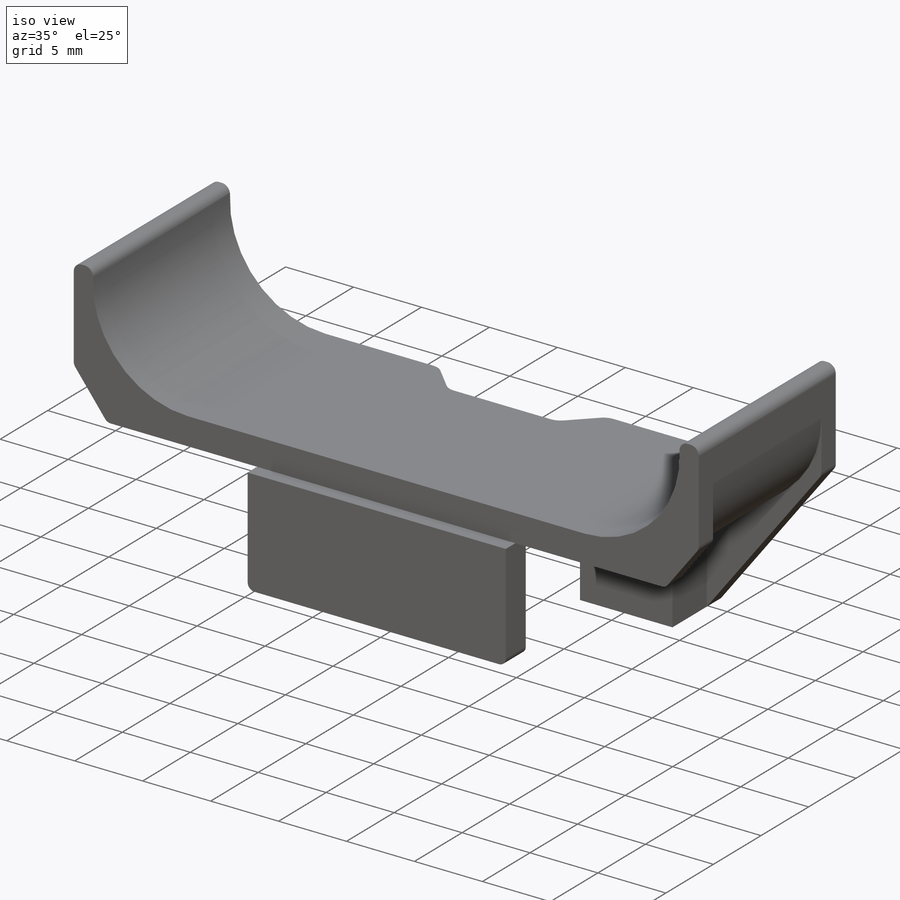
[diagram: iso view]
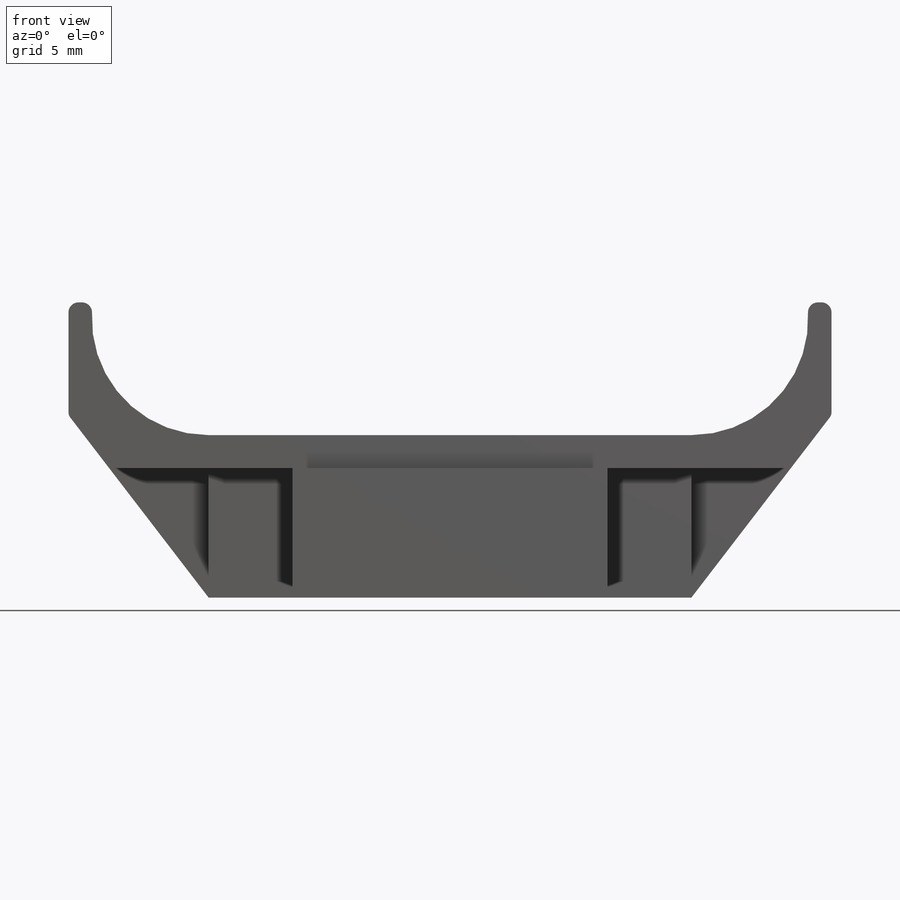
[diagram: front view]
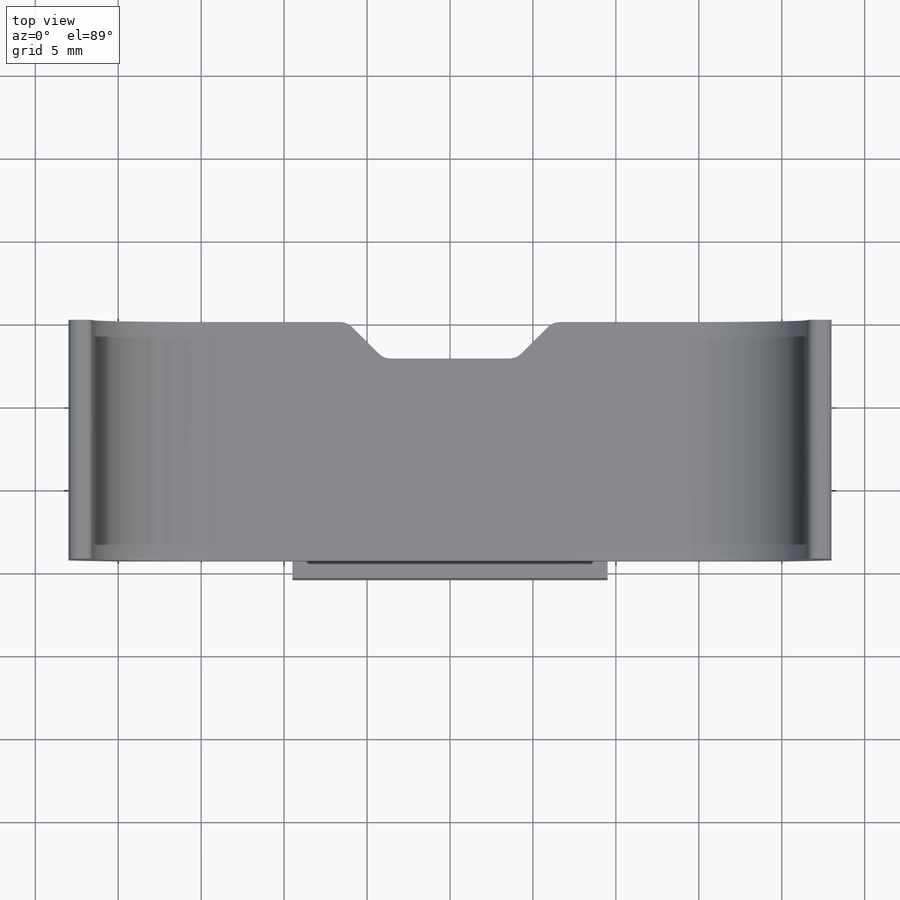
[diagram: top view]
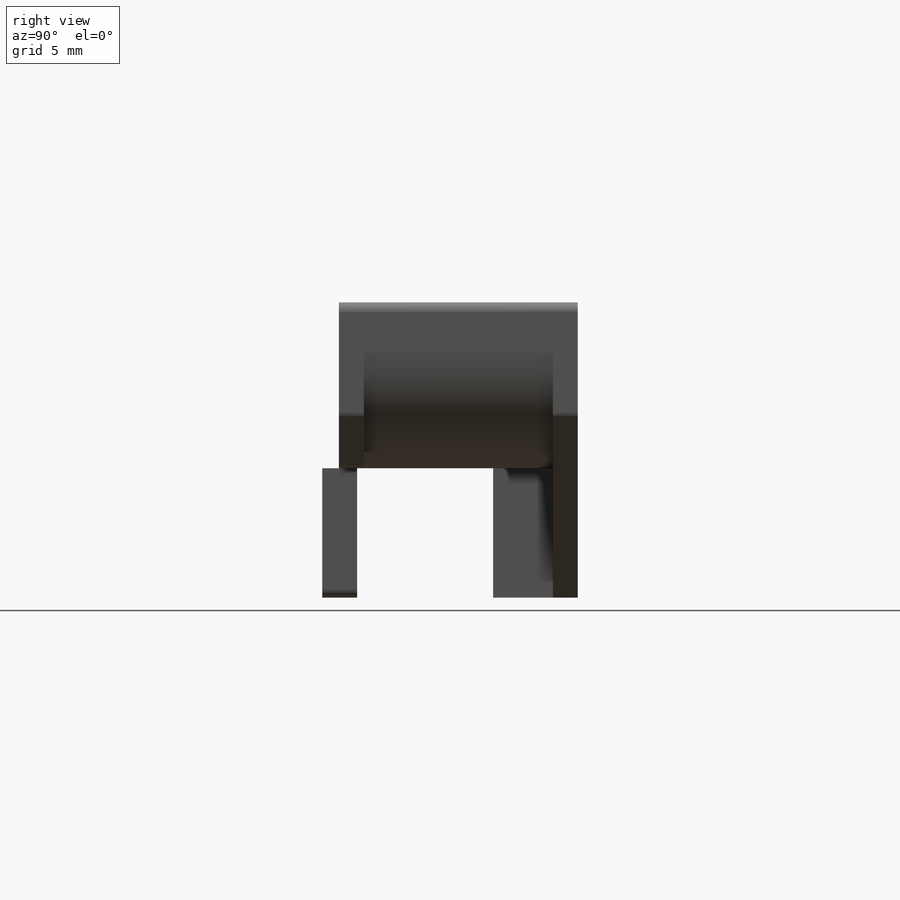
[diagram: right view]
SOLIDWORKS PART (.sldprt)
format: sldprt  version: not decoded by parser v0  size: 416,256 bytes
history: native  units: mm
features: sketch x8, extrude x5, plane x3, thread x2, fillet x2, material x1, cut_extrude x1, hole x1 (+10 scaffold rows collapsed)
feature tree (33):
  scaffold x10  (default folders/planes/origin — collapsed)
  material  "材质 <未指定>"
  plane  "前视基准面"
  plane  "上视基准面"
  plane  "右视基准面"
  sketch  "草图1"  dims[c1.D6=7.0mm c1.D7=4.0mm c1.D8=0.6mm c2.D7=7.0mm c2.D1=23.0mm c2.D2=10.0mm c2.D3=2.0mm c2.D4=1.2mm c2.D5=18.0mm]
  extrude  "凸台-拉伸1"  Depth=14.4mm
  sketch  "草图2"  dims[c1.D1=4.0mm c1.D2=2.2mm c1.D3=2.2mm c2.D1=1.8mm c2.D2=2.2mm c3.D1=8.0mm]
  cut_extrude  "切除-拉伸1"  [1 undecoded]
  sketch  "草图3"  dims[D1=9.8mm D2=7.75mm D3=6.8mm D4=5.0mm D5=~9.085493mm]
  extrude  "凸台-拉伸2"  Depth=1.5mm
  sketch  "草图4"  dims[c1.D1=~6.154308mm c1.D2=~6.410217mm c2.D1=5.0mm c2.D2=5.0mm c3.D1=5.1mm]
  extrude  "凸台-拉伸3"  [1 undecoded]
  sketch  "草图5"  dims[c1.D1=~2.710305mm c1.D2=~18.565591mm c2.D1=2.1mm c2.D2=1.0mm c2.D3=19.0mm]
  extrude  "凸台-拉伸4"  [1 undecoded]
  sketch  "草图6"  dims[D3=~0.093972mm D1=0.0mm D2=0.0mm]
  extrude  "凸台-拉伸5"  Depth=1.5mm
  hole  "M3 螺纹孔1"  [1 undecoded]
  sketch  "草图8"  dims[D1=22.3mm]
  sketch  "草图7"  dims[hole-wizard template sketch: 50 standard entries collapsed; hole parameters above]
  thread  "孔螺蚊线1"  Diameter=4mm  [1 undecoded]
  thread  "孔螺蚊线2"  Diameter=4mm  [1 undecoded]
  fillet  "圆角1"  Radius=0.5mm
  fillet  "圆角2"  Radius=1mm
decode coverage: 15 of 19 modeling features carry decoded parameters
note: ~ marks probable driven/reference dimensions
note: 6 parameter values undecoded
summary: no parameter record found for 4 features
note: suppression state not decoded; provenance and decode notes live in map.json
